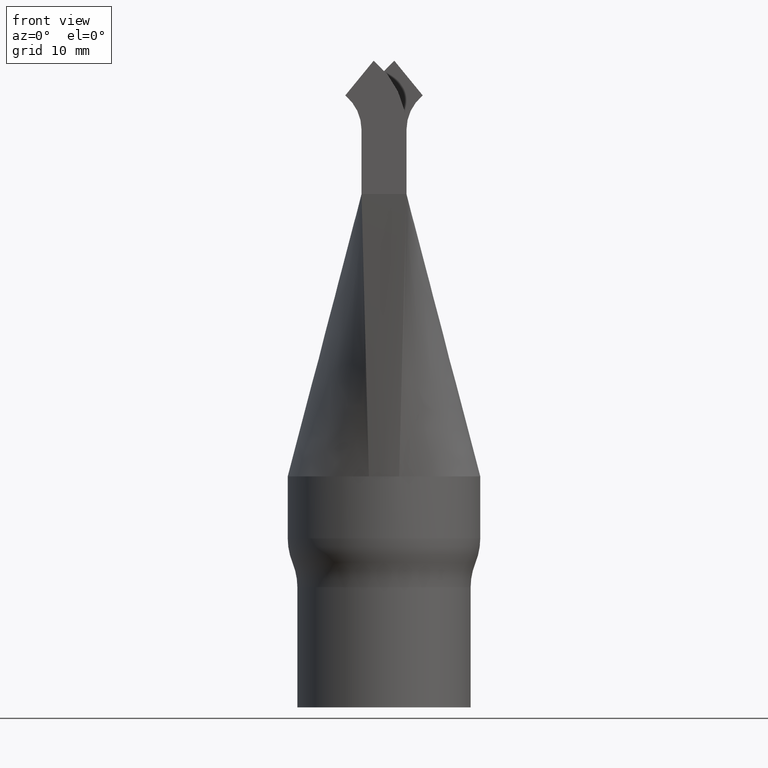
[diagram: clean part render]
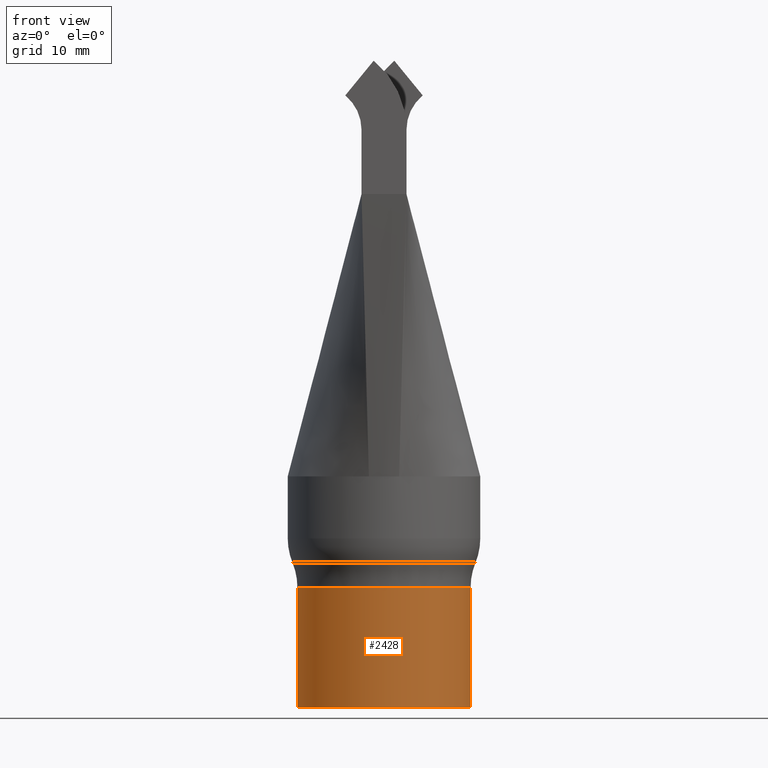
[diagram: same view with one face highlighted and labeled with its STEP entity id]
A machine part, front view. The second image highlights one B-rep face of the part: STEP entity #2428.
In plain terms, the highlighted cylindrical surface (partial cylindrical patch) has radius 13.5 mm, axis along (-0, -0, -1).
Its self-contained STEP definition (entity closure, byte-faithful):
#585 = DIRECTION ( 'NONE',  ( -0.0000000000000000000, -0.0000000000000000000, -1.000000000000000000 ) ) ;
#1472 = FACE_OUTER_BOUND ( 'NONE', #10181, .T. ) ;
#1874 = DIRECTION ( 'NONE',  ( 1.000000000000000000, 0.0000000000000000000, 0.0000000000000000000 ) ) ;
#2428 = ADVANCED_FACE ( 'NONE', ( #1472 ), #13972, .T. ) ;
#2807 = CARTESIAN_POINT ( 'NONE',  ( -13.50000000000000000, 0.0000000000000000000, 18.73217312357362700 ) ) ;
#3005 = DIRECTION ( 'NONE',  ( 0.0000000000000000000, 0.0000000000000000000, 1.000000000000000000 ) ) ;
#3371 = VECTOR ( 'NONE', #585, 1000.000000000000000 ) ;
#3552 = AXIS2_PLACEMENT_3D ( 'NONE', #9197, #3005, #1874 ) ;
#3576 = CARTESIAN_POINT ( 'NONE',  ( 0.0000000000000000000, 0.0000000000000000000, 18.73217312357362700 ) ) ;
#3631 = DIRECTION ( 'NONE',  ( 1.000000000000000000, 0.0000000000000000000, 0.0000000000000000000 ) ) ;
#3740 = AXIS2_PLACEMENT_3D ( 'NONE', #3576, #4775, #3631 ) ;
#4048 = VERTEX_POINT ( 'NONE', #12780 ) ;
#4202 = CARTESIAN_POINT ( 'NONE',  ( -13.50000000000000000, 0.0000000000000000000, 24.00000000000000000 ) ) ;
#4775 = DIRECTION ( 'NONE',  ( -0.0000000000000000000, -0.0000000000000000000, -1.000000000000000000 ) ) ;
#6202 = DIRECTION ( 'NONE',  ( -0.0000000000000000000, -0.0000000000000000000, -1.000000000000000000 ) ) ;
#6310 = DIRECTION ( 'NONE',  ( -1.000000000000000000, 0.0000000000000000000, 0.0000000000000000000 ) ) ;
#6387 = EDGE_CURVE ( 'NONE', #4048, #10070, #6834, .T. ) ;
#6583 = LINE ( 'NONE', #4202, #3371 ) ;
#6834 = CIRCLE ( 'NONE', #3740, 13.50000000000000000 ) ;
#7114 = VERTEX_POINT ( 'NONE', #13463 ) ;
#7798 = CIRCLE ( 'NONE', #3552, 13.50000000000000000 ) ;
#7834 = CARTESIAN_POINT ( 'NONE',  ( 13.50000000000000000, 1.653273178848926900E-015, 24.00000000000000000 ) ) ;
#7835 = EDGE_CURVE ( 'NONE', #12130, #7114, #7798, .T. ) ;
#8232 = CARTESIAN_POINT ( 'NONE',  ( -13.50000000000000000, 0.0000000000000000000, 0.0000000000000000000 ) ) ;
#8395 = AXIS2_PLACEMENT_3D ( 'NONE', #13470, #6202, #6310 ) ;
#8689 = ORIENTED_EDGE ( 'NONE', *, *, #11956, .T. ) ;
#9038 = DIRECTION ( 'NONE',  ( -0.0000000000000000000, -0.0000000000000000000, -1.000000000000000000 ) ) ;
#9197 = CARTESIAN_POINT ( 'NONE',  ( 0.0000000000000000000, 0.0000000000000000000, 0.0000000000000000000 ) ) ;
#9299 = ORIENTED_EDGE ( 'NONE', *, *, #7835, .T. ) ;
#10070 = VERTEX_POINT ( 'NONE', #2807 ) ;
#10181 = EDGE_LOOP ( 'NONE', ( #11539, #12694, #8689, #9299 ) ) ;
#10237 = EDGE_CURVE ( 'NONE', #4048, #7114, #13826, .T. ) ;
#10795 = VECTOR ( 'NONE', #9038, 1000.000000000000000 ) ;
#11539 = ORIENTED_EDGE ( 'NONE', *, *, #10237, .F. ) ;
#11956 = EDGE_CURVE ( 'NONE', #10070, #12130, #6583, .T. ) ;
#12130 = VERTEX_POINT ( 'NONE', #8232 ) ;
#12694 = ORIENTED_EDGE ( 'NONE', *, *, #6387, .T. ) ;
#12780 = CARTESIAN_POINT ( 'NONE',  ( 13.50000000000000000, 1.653273178848926900E-015, 18.73217312357362700 ) ) ;
#13463 = CARTESIAN_POINT ( 'NONE',  ( 13.50000000000000000, 1.653273178848926900E-015, 0.0000000000000000000 ) ) ;
#13470 = CARTESIAN_POINT ( 'NONE',  ( 0.0000000000000000000, 0.0000000000000000000, 24.00000000000000000 ) ) ;
#13826 = LINE ( 'NONE', #7834, #10795 ) ;
#13972 = CYLINDRICAL_SURFACE ( 'NONE', #8395, 13.50000000000000000 ) ;